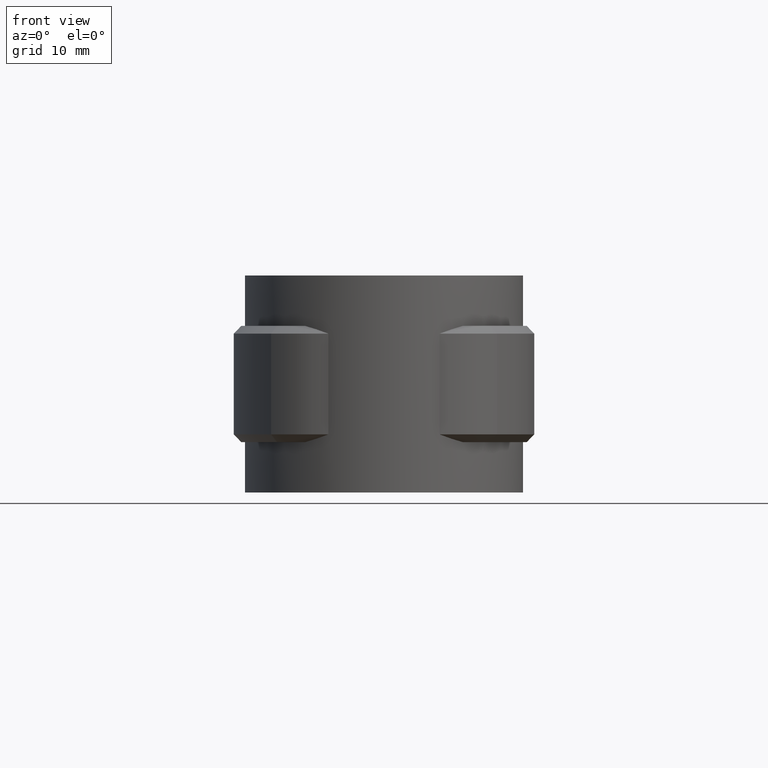
[diagram: clean part render]
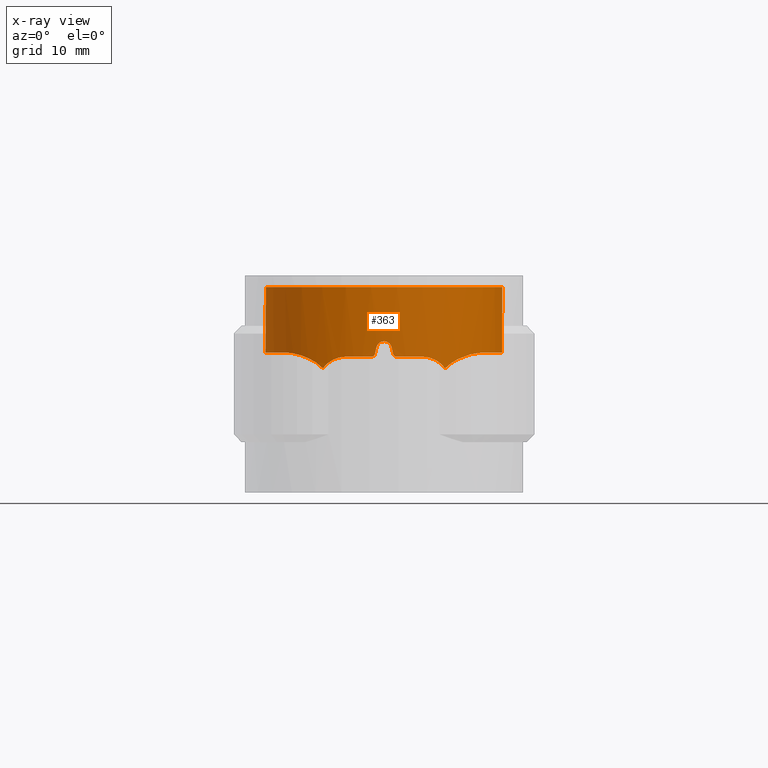
[diagram: x-ray — body ghosted, one internal face saturated and labeled with its STEP entity id]
A machine part, front view, then the same camera in x-ray: the body is ghosted and one INTERNAL B-rep face — a face not visible from any outside direction — is saturated and labeled: STEP entity #363.
In plain terms, the highlighted cylindrical surface (partial cylindrical patch) has radius 15.3 mm, axis along (0, 0, 1).
Its self-contained STEP definition (entity closure, byte-faithful):
#363 = ADVANCED_FACE( '', ( #702 ), #703, .T. );
#702 = FACE_OUTER_BOUND( '', #1430, .T. );
#703 = CYLINDRICAL_SURFACE( '', #1431, 15.3000000000000 );
#1430 = EDGE_LOOP( '', ( #2806, #2807, #2808, #2809, #2810, #2811, #2812, #2813, #2814, #2815, #2816, #2817, #2818, #2819, #2820, #2821 ) );
#1431 = AXIS2_PLACEMENT_3D( '', #2822, #2823, #2824 );
#2806 = ORIENTED_EDGE( '', *, *, #6200, .F. );
#2807 = ORIENTED_EDGE( '', *, *, #6201, .F. );
#2808 = ORIENTED_EDGE( '', *, *, #6202, .F. );
#2809 = ORIENTED_EDGE( '', *, *, #6203, .F. );
#2810 = ORIENTED_EDGE( '', *, *, #6204, .F. );
#2811 = ORIENTED_EDGE( '', *, *, #6205, .T. );
#2812 = ORIENTED_EDGE( '', *, *, #6206, .F. );
#2813 = ORIENTED_EDGE( '', *, *, #6207, .F. );
#2814 = ORIENTED_EDGE( '', *, *, #6208, .F. );
#2815 = ORIENTED_EDGE( '', *, *, #6209, .F. );
#2816 = ORIENTED_EDGE( '', *, *, #6210, .F. );
#2817 = ORIENTED_EDGE( '', *, *, #6211, .F. );
#2818 = ORIENTED_EDGE( '', *, *, #6212, .F. );
#2819 = ORIENTED_EDGE( '', *, *, #6213, .F. );
#2820 = ORIENTED_EDGE( '', *, *, #6214, .F. );
#2821 = ORIENTED_EDGE( '', *, *, #6215, .F. );
#2822 = CARTESIAN_POINT( '', ( 0.000000000000000, 0.000000000000000, 0.000000000000000 ) );
#2823 = DIRECTION( '', ( 0.000000000000000, 0.000000000000000, 1.00000000000000 ) );
#2824 = DIRECTION( '', ( 1.00000000000000, -6.12303176911189E-017, 0.000000000000000 ) );
#6200 = EDGE_CURVE( '', #7110, #7111, #7112, .T. );
#6201 = EDGE_CURVE( '', #7113, #7110, #7114, .T. );
#6202 = EDGE_CURVE( '', #7115, #7113, #7116, .T. );
#6203 = EDGE_CURVE( '', #7117, #7115, #7118, .T. );
#6204 = EDGE_CURVE( '', #7119, #7117, #7120, .F. );
#6205 = EDGE_CURVE( '', #7119, #7121, #7122, .T. );
#6206 = EDGE_CURVE( '', #7123, #7121, #7124, .T. );
#6207 = EDGE_CURVE( '', #7125, #7123, #7126, .T. );
#6208 = EDGE_CURVE( '', #7127, #7125, #7128, .T. );
#6209 = EDGE_CURVE( '', #7129, #7127, #7130, .T. );
#6210 = EDGE_CURVE( '', #7131, #7129, #7132, .T. );
#6211 = EDGE_CURVE( '', #7133, #7131, #7134, .T. );
#6212 = EDGE_CURVE( '', #7135, #7133, #7136, .T. );
#6213 = EDGE_CURVE( '', #7137, #7135, #7138, .T. );
#6214 = EDGE_CURVE( '', #7139, #7137, #7140, .T. );
#6215 = EDGE_CURVE( '', #7111, #7139, #7141, .T. );
#7110 = VERTEX_POINT( '', #8622 );
#7111 = VERTEX_POINT( '', #8623 );
#7112 = B_SPLINE_CURVE_WITH_KNOTS( '', 3, ( #8624, #8625, #8626, #8627, #8628, #8629, #8630, #8631, #8632, #8633 ), .UNSPECIFIED., .F., .F., ( 4, 2, 2, 2, 4 ), ( 0.00793069399882955, 0.00882965665763709, 0.00972861931644463, 0.0106275819752522, 0.0115265446340597 ), .UNSPECIFIED. );
#7113 = VERTEX_POINT( '', #8634 );
#7114 = B_SPLINE_CURVE_WITH_KNOTS( '', 3, ( #8635, #8636, #8637, #8638, #8639, #8640, #8641, #8642, #8643, #8644, #8645, #8646, #8647, #8648 ), .UNSPECIFIED., .F., .F., ( 4, 2, 2, 2, 2, 2, 4 ), ( 0.000000000000000, 0.00173545168588772, 0.00347090337177544, 0.00433862921471931, 0.00520635505766317, 0.00607408090060704, 0.00694180674355090 ), .UNSPECIFIED. );
#7115 = VERTEX_POINT( '', #8649 );
#7116 = B_SPLINE_CURVE_WITH_KNOTS( '', 3, ( #8650, #8651, #8652, #8653, #8654, #8655, #8656, #8657, #8658, #8659, #8660, #8661, #8662, #8663, #8664, #8665, #8666, #8667, #8668, #8669, #8670, #8671, #8672, #8673 ), .UNSPECIFIED., .F., .F., ( 4, 2, 2, 2, 2, 2, 2, 2, 2, 2, 2, 4 ), ( 0.000000000000000, 0.00337849067238585, 0.00506773600857877, 0.00675698134477170, 0.00844622668096462, 0.0101354720171575, 0.0135139626895434, 0.0152032080257363, 0.0168924533619292, 0.0202709440343151, 0.0236494347067009, 0.0270279253790868 ), .UNSPECIFIED. );
#7117 = VERTEX_POINT( '', #8674 );
#7118 = LINE( '', #8675, #8676 );
#7119 = VERTEX_POINT( '', #8677 );
#7120 = CIRCLE( '', #8678, 15.3000000000000 );
#7121 = VERTEX_POINT( '', #8679 );
#7122 = LINE( '', #8680, #8681 );
#7123 = VERTEX_POINT( '', #8682 );
#7124 = B_SPLINE_CURVE_WITH_KNOTS( '', 3, ( #8683, #8684, #8685, #8686, #8687, #8688, #8689, #8690, #8691, #8692, #8693, #8694, #8695, #8696, #8697, #8698, #8699, #8700, #8701, #8702, #8703, #8704, #8705, #8706 ), .UNSPECIFIED., .F., .F., ( 4, 2, 2, 2, 2, 2, 2, 2, 2, 2, 2, 4 ), ( 0.000000000000000, 0.00337848974913548, 0.00506773462370322, 0.00675697949827095, 0.00844622437283869, 0.0101354692474064, 0.0135139589965419, 0.0152032038711096, 0.0168924487456774, 0.0202709384948129, 0.0236494282439483, 0.0270279179930838 ), .UNSPECIFIED. );
#7125 = VERTEX_POINT( '', #8707 );
#7126 = B_SPLINE_CURVE_WITH_KNOTS( '', 3, ( #8708, #8709, #8710, #8711, #8712, #8713, #8714, #8715, #8716, #8717, #8718, #8719, #8720, #8721, #8722, #8723 ), .UNSPECIFIED., .F., .F., ( 4, 2, 2, 2, 2, 2, 2, 4 ), ( 0.0115037032813335, 0.0123705324741521, 0.0132373616669708, 0.0141041908597894, 0.0149710200526081, 0.0158378492454268, 0.0167046784382454, 0.0184383368238828 ), .UNSPECIFIED. );
#7127 = VERTEX_POINT( '', #8724 );
#7128 = B_SPLINE_CURVE_WITH_KNOTS( '', 3, ( #8725, #8726, #8727, #8728, #8729, #8730, #8731, #8732, #8733, #8734 ), .UNSPECIFIED., .F., .F., ( 4, 2, 2, 2, 4 ), ( 3.12731722069275E-018, 0.000902552391410097, 0.00180510478282019, 0.00270765717423028, 0.00361020956564038 ), .UNSPECIFIED. );
#7129 = VERTEX_POINT( '', #8735 );
#7130 = CIRCLE( '', #8736, 15.3000000000000 );
#7131 = VERTEX_POINT( '', #8737 );
#7132 = B_SPLINE_CURVE_WITH_KNOTS( '', 3, ( #8738, #8739, #8740, #8741, #8742, #8743 ), .UNSPECIFIED., .F., .F., ( 4, 2, 4 ), ( 1.78811203067275E-018, 0.000336655613353345, 0.000673311226706689 ), .UNSPECIFIED. );
#7133 = VERTEX_POINT( '', #8744 );
#7134 = ELLIPSE( '', #8745, 69.7000711111876, 15.3000000000000 );
#7135 = VERTEX_POINT( '', #8746 );
#7136 = B_SPLINE_CURVE_WITH_KNOTS( '', 3, ( #8747, #8748, #8749, #8750, #8751, #8752, #8753, #8754, #8755, #8756 ), .UNSPECIFIED., .F., .F., ( 4, 2, 2, 2, 4 ), ( 0.000000000000000, 0.000671750243631357, 0.00134350048726271, 0.00201525073089407, 0.00268700097452543 ), .UNSPECIFIED. );
#7137 = VERTEX_POINT( '', #8757 );
#7138 = ELLIPSE( '', #8758, 69.7000355555817, 15.3000000000000 );
#7139 = VERTEX_POINT( '', #8759 );
#7140 = B_SPLINE_CURVE_WITH_KNOTS( '', 3, ( #8760, #8761, #8762, #8763, #8764, #8765 ), .UNSPECIFIED., .F., .F., ( 4, 2, 4 ), ( 8.20849171219253E-018, 0.000336638865399034, 0.000673277730798061 ), .UNSPECIFIED. );
#7141 = CIRCLE( '', #8766, 15.3000000000000 );
#8622 = CARTESIAN_POINT( '', ( 7.87194993485722, -13.1195428359036, -10.4995241636867 ) );
#8623 = CARTESIAN_POINT( '', ( 5.00000000000000, -14.4599446748596, -9.00000000000000 ) );
#8624 = CARTESIAN_POINT( '', ( 7.87194993485716, -13.1195428359033, -10.4995241636866 ) );
#8625 = CARTESIAN_POINT( '', ( 7.70865094498074, -13.2175250208619, -10.2650866789519 ) );
#8626 = CARTESIAN_POINT( '', ( 7.51776101368131, -13.3277933746706, -10.0528629646949 ) );
#8627 = CARTESIAN_POINT( '', ( 7.09897570629181, -13.5554915373150, -9.68541278764146 ) );
#8628 = CARTESIAN_POINT( '', ( 6.86622150503558, -13.6754961272244, -9.52611791614011 ) );
#8629 = CARTESIAN_POINT( '', ( 6.37510165947340, -13.9112282316595, -9.26954294554568 ) );
#8630 = CARTESIAN_POINT( '', ( 6.11639506588634, -14.0273663019708, -9.17091319151234 ) );
#8631 = CARTESIAN_POINT( '', ( 5.57027714878039, -14.2530455151676, -9.03532961233526 ) );
#8632 = CARTESIAN_POINT( '', ( 5.28764682543656, -14.3604813532825, -8.99999999999998 ) );
#8633 = CARTESIAN_POINT( '', ( 5.00000000000000, -14.4599446748596, -8.99999999999997 ) );
#8634 = CARTESIAN_POINT( '', ( 12.6110727878860, -8.66318897050281, -8.45031892622464 ) );
#8635 = CARTESIAN_POINT( '', ( 12.6110727878860, -8.66318897050281, -8.45031892622464 ) );
#8636 = CARTESIAN_POINT( '', ( 12.2787524010647, -9.14695038923338, -8.46550990858840 ) );
#8637 = CARTESIAN_POINT( '', ( 11.9235910034446, -9.60450669304155, -8.51116083134943 ) );
#8638 = CARTESIAN_POINT( '', ( 11.1715127557968, -10.4697599772474, -8.66791811163752 ) );
#8639 = CARTESIAN_POINT( '', ( 10.7745882532920, -10.8773725679151, -8.77941280152085 ) );
#8640 = CARTESIAN_POINT( '', ( 10.1511190736469, -11.4509618833930, -9.01216554269244 ) );
#8641 = CARTESIAN_POINT( '', ( 9.93894791792869, -11.6354027845567, -9.10085375859678 ) );
#8642 = CARTESIAN_POINT( '', ( 9.51537023707728, -11.9842819111331, -9.30141862969721 ) );
#8643 = CARTESIAN_POINT( '', ( 9.30295281880300, -12.1496614772324, -9.41356554006848 ) );
#8644 = CARTESIAN_POINT( '', ( 8.87977396000486, -12.4622959192695, -9.66695585382485 ) );
#8645 = CARTESIAN_POINT( '', ( 8.66770891528999, -12.6103831388595, -9.80908779401239 ) );
#8646 = CARTESIAN_POINT( '', ( 8.25637209485775, -12.8834490948769, -10.1274435297160 ) );
#8647 = CARTESIAN_POINT( '', ( 8.05799841358993, -13.0079105688069, -10.3025626028772 ) );
#8648 = CARTESIAN_POINT( '', ( 7.87194993485673, -13.1195428359036, -10.4995241636863 ) );
#8649 = CARTESIAN_POINT( '', ( 5.95508982035928, 14.0935057821485, -8.45226729138235 ) );
#8650 = CARTESIAN_POINT( '', ( 5.95508982035928, 14.0935057821485, -8.45226729138233 ) );
#8651 = CARTESIAN_POINT( '', ( 7.00540709996952, 13.6497032367324, -8.45390515077287 ) );
#8652 = CARTESIAN_POINT( '', ( 7.98833917484386, 13.0977071765000, -8.45433456352181 ) );
#8653 = CARTESIAN_POINT( '', ( 9.36474915869099, 12.1123840431278, -8.45230022380100 ) );
#8654 = CARTESIAN_POINT( '', ( 9.80897304357575, 11.7557295501313, -8.45130217704716 ) );
#8655 = CARTESIAN_POINT( '', ( 10.6542534858052, 10.9954541554968, -8.45011867942905 ) );
#8656 = CARTESIAN_POINT( '', ( 11.0522173135953, 10.5950394562952, -8.45024402883691 ) );
#8657 = CARTESIAN_POINT( '', ( 11.8003331836054, 9.75492211057010, -8.45109332326582 ) );
#8658 = CARTESIAN_POINT( '', ( 12.1504813178563, 9.31521621707749, -8.45168265912335 ) );
#8659 = CARTESIAN_POINT( '', ( 12.8027128447681, 8.39630831025688, -8.45228185336801 ) );
#8660 = CARTESIAN_POINT( '', ( 13.1058013748109, 7.91527764298565, -8.45228810635509 ) );
#8661 = CARTESIAN_POINT( '', ( 13.9332426752597, 6.42256552465585, -8.45140198263701 ) );
#8662 = CARTESIAN_POINT( '', ( 14.3656891301544, 5.38385352930454, -8.44980454309737 ) );
#8663 = CARTESIAN_POINT( '', ( 14.8408836696453, 3.76236596523588, -8.45110774447446 ) );
#8664 = CARTESIAN_POINT( '', ( 14.9703352046328, 3.20986824873691, -8.45178080891350 ) );
#8665 = CARTESIAN_POINT( '', ( 15.1675027346726, 2.08831298109673, -8.45256434646519 ) );
#8666 = CARTESIAN_POINT( '', ( 15.2339943467144, 1.52711420599460, -8.45266538063568 ) );
#8667 = CARTESIAN_POINT( '', ( 15.3405272523831, -0.157701726061642, -8.45194690359650 ) );
#8668 = CARTESIAN_POINT( '', ( 15.2886124364511, -1.28348506083063, -8.44984870711149 ) );
#8669 = CARTESIAN_POINT( '', ( 14.9297054039767, -3.53452976842064, -8.45101732554135 ) );
#8670 = CARTESIAN_POINT( '', ( 14.6293632335126, -4.61942105654775, -8.45276188964351 ) );
#8671 = CARTESIAN_POINT( '', ( 13.7956940440721, -6.71089750764227, -8.45205521599975 ) );
#8672 = CARTESIAN_POINT( '', ( 13.2566961461038, -7.72334993527380, -8.44956537244370 ) );
#8673 = CARTESIAN_POINT( '', ( 12.6110727878860, -8.66318897050281, -8.45031892622464 ) );
#8674 = CARTESIAN_POINT( '', ( 5.95508982035928, 14.0935057821485, 0.000000000000000 ) );
#8675 = CARTESIAN_POINT( '', ( 5.95508982035928, 14.0935057821485, 0.000000000000000 ) );
#8676 = VECTOR( '', #12172, 1000.00000000000 );
#8677 = CARTESIAN_POINT( '', ( -5.95508982035928, 14.0935057821485, 0.000000000000000 ) );
#8678 = AXIS2_PLACEMENT_3D( '', #12173, #12174, #12175 );
#8679 = CARTESIAN_POINT( '', ( -5.95508982035929, 14.0935057821485, -8.45226729138233 ) );
#8680 = CARTESIAN_POINT( '', ( -5.95508982035929, 14.0935057821485, 0.000000000000000 ) );
#8681 = VECTOR( '', #12176, 1000.00000000000 );
#8682 = CARTESIAN_POINT( '', ( -12.6110727878862, -8.66318897050286, -8.45031892622483 ) );
#8683 = CARTESIAN_POINT( '', ( -12.6110727878860, -8.66318897050281, -8.45031892622465 ) );
#8684 = CARTESIAN_POINT( '', ( -13.2566959368118, -7.72335023994181, -8.44956537268799 ) );
#8685 = CARTESIAN_POINT( '', ( -13.7872519999963, -6.72868324598035, -8.45203498790222 ) );
#8686 = CARTESIAN_POINT( '', ( -14.4157629811428, -5.15695177944743, -8.45258721794598 ) );
#8687 = CARTESIAN_POINT( '', ( -14.5977817794948, -4.61713079014230, -8.45237562317452 ) );
#8688 = CARTESIAN_POINT( '', ( -14.9001468151511, -3.52118651905475, -8.45143865004645 ) );
#8689 = CARTESIAN_POINT( '', ( -15.0196155399717, -2.96943056561901, -8.45072674235892 ) );
#8690 = CARTESIAN_POINT( '', ( -15.1971057085317, -1.85858734965746, -8.45014450833671 ) );
#8691 = CARTESIAN_POINT( '', ( -15.2551221059123, -1.29949949571398, -8.45053515373791 ) );
#8692 = CARTESIAN_POINT( '', ( -15.3093824020463, -0.173953653516127, -8.45159166864484 ) );
#8693 = CARTESIAN_POINT( '', ( -15.3054876661238, 0.394585777385038, -8.45218127623429 ) );
#8694 = CARTESIAN_POINT( '', ( -15.1981365292448, 2.09791529208462, -8.45291107734749 ) );
#8695 = CARTESIAN_POINT( '', ( -15.0026932763093, 3.20594681079866, -8.45156493687628 ) );
#8696 = CARTESIAN_POINT( '', ( -14.5292207707281, 4.82793630028559, -8.45024644846663 ) );
#8697 = CARTESIAN_POINT( '', ( -14.3405455744282, 5.36310958643268, -8.45027416187245 ) );
#8698 = CARTESIAN_POINT( '', ( -13.9022635465869, 6.41414531247766, -8.45111113771660 ) );
#8699 = CARTESIAN_POINT( '', ( -13.6558614780494, 6.92272416588369, -8.45169797640167 ) );
#8700 = CARTESIAN_POINT( '', ( -12.8377048184716, 8.39940386766398, -8.45257732633630 ) );
#8701 = CARTESIAN_POINT( '', ( -12.1873217869345, 9.31977448680832, -8.45153540932948 ) );
#8702 = CARTESIAN_POINT( '', ( -10.6719581828801, 11.0226275164369, -8.44980959461245 ) );
#8703 = CARTESIAN_POINT( '', ( -9.83433755861948, 11.7746813443322, -8.45159435834309 ) );
#8704 = CARTESIAN_POINT( '', ( -8.00503165778895, 13.0872756574940, -8.45432152731595 ) );
#8705 = CARTESIAN_POINT( '', ( -7.00540523774510, 13.6497040235993, -8.45390514786892 ) );
#8706 = CARTESIAN_POINT( '', ( -5.95508982035929, 14.0935057821485, -8.45226729138233 ) );
#8707 = CARTESIAN_POINT( '', ( -7.87194993485690, -13.1195428359035, -10.4995241636861 ) );
#8708 = CARTESIAN_POINT( '', ( -7.87194993485686, -13.1195428359035, -10.4995241636861 ) );
#8709 = CARTESIAN_POINT( '', ( -8.05919526003263, -13.0071924404853, -10.3012955527782 ) );
#8710 = CARTESIAN_POINT( '', ( -8.25767841672519, -12.8825677442839, -10.1264761198273 ) );
#8711 = CARTESIAN_POINT( '', ( -8.66517556422431, -12.6120790102696, -9.81100499907998 ) );
#8712 = CARTESIAN_POINT( '', ( -8.87465321056828, -12.4659654054786, -9.67022744171875 ) );
#8713 = CARTESIAN_POINT( '', ( -9.29964199274666, -12.1522188058470, -9.41534662994498 ) );
#8714 = CARTESIAN_POINT( '', ( -9.51330828372922, -11.9858850727361, -9.30251173288930 ) );
#8715 = CARTESIAN_POINT( '', ( -9.93469889429310, -11.6389962349783, -9.10275065095695 ) );
#8716 = CARTESIAN_POINT( '', ( -10.1433462549369, -11.4577731096735, -9.01537056019381 ) );
#8717 = CARTESIAN_POINT( '', ( -10.5548460057715, -11.0798584681732, -8.86115759596637 ) );
#8718 = CARTESIAN_POINT( '', ( -10.7577076777747, -10.8831667232780, -8.79434846855494 ) );
#8719 = CARTESIAN_POINT( '', ( -11.1564367399365, -10.4740398927498, -8.67889913708773 ) );
#8720 = CARTESIAN_POINT( '', ( -11.3528453658312, -10.2609308359991, -8.63024747956064 ) );
#8721 = CARTESIAN_POINT( '', ( -11.9228704760941, -9.60574607705254, -8.51106576425916 ) );
#8722 = CARTESIAN_POINT( '', ( -12.2793195777272, -9.14612474567432, -8.46548398188929 ) );
#8723 = CARTESIAN_POINT( '', ( -12.6110727878860, -8.66318897050281, -8.45031892622464 ) );
#8724 = CARTESIAN_POINT( '', ( -5.00000000000005, -14.4599446748596, -9.00000000000000 ) );
#8725 = CARTESIAN_POINT( '', ( -5.00000000000005, -14.4599446748596, -8.99999999999997 ) );
#8726 = CARTESIAN_POINT( '', ( -5.28862160162935, -14.3601442924518, -8.99999999999997 ) );
#8727 = CARTESIAN_POINT( '', ( -5.56828150182051, -14.2537913109440, -9.03513187627045 ) );
#8728 = CARTESIAN_POINT( '', ( -6.11141724791708, -14.0295012328066, -9.16938343828338 ) );
#8729 = CARTESIAN_POINT( '', ( -6.37685529492274, -13.9104300211604, -9.27025884045793 ) );
#8730 = CARTESIAN_POINT( '', ( -6.86845294857195, -13.6743811896275, -9.52748556945979 ) );
#8731 = CARTESIAN_POINT( '', ( -7.09815732673176, -13.5559720277903, -9.68444656839188 ) );
#8732 = CARTESIAN_POINT( '', ( -7.52207143949557, -13.3254139264938, -10.0568952236879 ) );
#8733 = CARTESIAN_POINT( '', ( -7.70928665840535, -13.2171435819418, -10.2659993303797 ) );
#8734 = CARTESIAN_POINT( '', ( -7.87194993485690, -13.1195428359035, -10.4995241636861 ) );
#8735 = CARTESIAN_POINT( '', ( -1.65000000000003, -15.2107692113187, -9.00000000000000 ) );
#8736 = AXIS2_PLACEMENT_3D( '', #12177, #12178, #12179 );
#8737 = CARTESIAN_POINT( '', ( -1.16219512100914, -15.2557957019850, -8.60975609337373 ) );
#8738 = CARTESIAN_POINT( '', ( -1.16219512100915, -15.2557957019850, -8.60975609337372 ) );
#8739 = CARTESIAN_POINT( '', ( -1.18718019133930, -15.2538923252354, -8.72080085484746 ) );
#8740 = CARTESIAN_POINT( '', ( -1.24937339150256, -15.2491638273020, -8.81997356472241 ) );
#8741 = CARTESIAN_POINT( '', ( -1.42680663648855, -15.2335863842157, -8.96159450174561 ) );
#8742 = CARTESIAN_POINT( '', ( -1.53684210786510, -15.2230441015250, -8.99999999999994 ) );
#8743 = CARTESIAN_POINT( '', ( -1.65000000000003, -15.2107692113187, -8.99999999999994 ) );
#8744 = CARTESIAN_POINT( '', ( -0.975610000000025, -15.2688632559173, -7.78048800000004 ) );
#8745 = AXIS2_PLACEMENT_3D( '', #12180, #12181, #12182 );
#8746 = CARTESIAN_POINT( '', ( 0.975609757981813, -15.2688632713811, -7.78048781325256 ) );
#8747 = CARTESIAN_POINT( '', ( 0.975609757981816, -15.2688632713811, -7.78048781325256 ) );
#8748 = CARTESIAN_POINT( '', ( 0.925753256865699, -15.2720488712600, -7.55890345399290 ) );
#8749 = CARTESIAN_POINT( '', ( 0.801992275849189, -15.2799961721199, -7.36098178575223 ) );
#8750 = CARTESIAN_POINT( '', ( 0.447466370338899, -15.2944842501451, -7.07733552221451 ) );
#8751 = CARTESIAN_POINT( '', ( 0.227143439189080, -15.3000000283266, -6.99999958588352 ) );
#8752 = CARTESIAN_POINT( '', ( -0.227147255240435, -15.2999999716731, -7.00000040725265 ) );
#8753 = CARTESIAN_POINT( '', ( -0.447547321265038, -15.2944813833536, -7.07738605412701 ) );
#8754 = CARTESIAN_POINT( '', ( -0.801987349730743, -15.2799959319822, -7.36099176213694 ) );
#8755 = CARTESIAN_POINT( '', ( -0.925753523622188, -15.2720488550089, -7.55890355263458 ) );
#8756 = CARTESIAN_POINT( '', ( -0.975610000000025, -15.2688632559173, -7.78048800000004 ) );
#8757 = CARTESIAN_POINT( '', ( 1.16219499999999, -15.2557957112035, -8.60975599999999 ) );
#8758 = AXIS2_PLACEMENT_3D( '', #12183, #12184, #12185 );
#8759 = CARTESIAN_POINT( '', ( 1.64999999999995, -15.2107692113187, -9.00000000000000 ) );
#8760 = CARTESIAN_POINT( '', ( 1.64999999999995, -15.2107692113187, -8.99999999999995 ) );
#8761 = CARTESIAN_POINT( '', ( 1.53684205018555, -15.2230441077818, -9.00000000048562 ) );
#8762 = CARTESIAN_POINT( '', ( 1.42680454084002, -15.2335865225725, -8.96158994493370 ) );
#8763 = CARTESIAN_POINT( '', ( 1.24939104558132, -15.2491623230159, -8.81999061126029 ) );
#8764 = CARTESIAN_POINT( '', ( 1.18718009144230, -15.2538923330449, -8.72080085308014 ) );
#8765 = CARTESIAN_POINT( '', ( 1.16219499999999, -15.2557957112035, -8.60975599999999 ) );
#8766 = AXIS2_PLACEMENT_3D( '', #12186, #12187, #12188 );
#12172 = DIRECTION( '', ( 0.000000000000000, 0.000000000000000, -1.00000000000000 ) );
#12173 = CARTESIAN_POINT( '', ( 0.000000000000000, 0.000000000000000, 0.000000000000000 ) );
#12174 = DIRECTION( '', ( 0.000000000000000, 0.000000000000000, -1.00000000000000 ) );
#12175 = DIRECTION( '', ( -1.00000000000000, 0.000000000000000, 0.000000000000000 ) );
#12176 = DIRECTION( '', ( 0.000000000000000, 0.000000000000000, -1.00000000000000 ) );
#12177 = CARTESIAN_POINT( '', ( 0.000000000000000, 0.000000000000000, -9.00000000000000 ) );
#12178 = DIRECTION( '', ( 6.12303176911189E-017, -3.05720745347993E-016, -1.00000000000000 ) );
#12179 = DIRECTION( '', ( 0.000000000000000, 1.00000000000000, -3.05720745347993E-016 ) );
#12180 = CARTESIAN_POINT( '', ( 0.000000000000000, 0.000000000000000, -3.44443890776447 ) );
#12181 = DIRECTION( '', ( 0.975609806487711, -1.18038009681476E-016, -0.219511971165610 ) );
#12182 = DIRECTION( '', ( -0.219511971165610, 2.65585237103421E-017, -0.975609806487711 ) );
#12183 = CARTESIAN_POINT( '', ( 0.000000000000000, 0.000000000000000, -3.44444212055030 ) );
#12184 = DIRECTION( '', ( -0.975609781292647, -1.61807527429124E-017, -0.219512083143762 ) );
#12185 = DIRECTION( '', ( 0.219512083143762, 3.64066741594651E-018, -0.975609781292647 ) );
#12186 = CARTESIAN_POINT( '', ( 0.000000000000000, 0.000000000000000, -9.00000000000000 ) );
#12187 = DIRECTION( '', ( 6.12303176911189E-017, -3.05720745347993E-016, -1.00000000000000 ) );
#12188 = DIRECTION( '', ( 0.000000000000000, 1.00000000000000, -3.05720745347993E-016 ) );